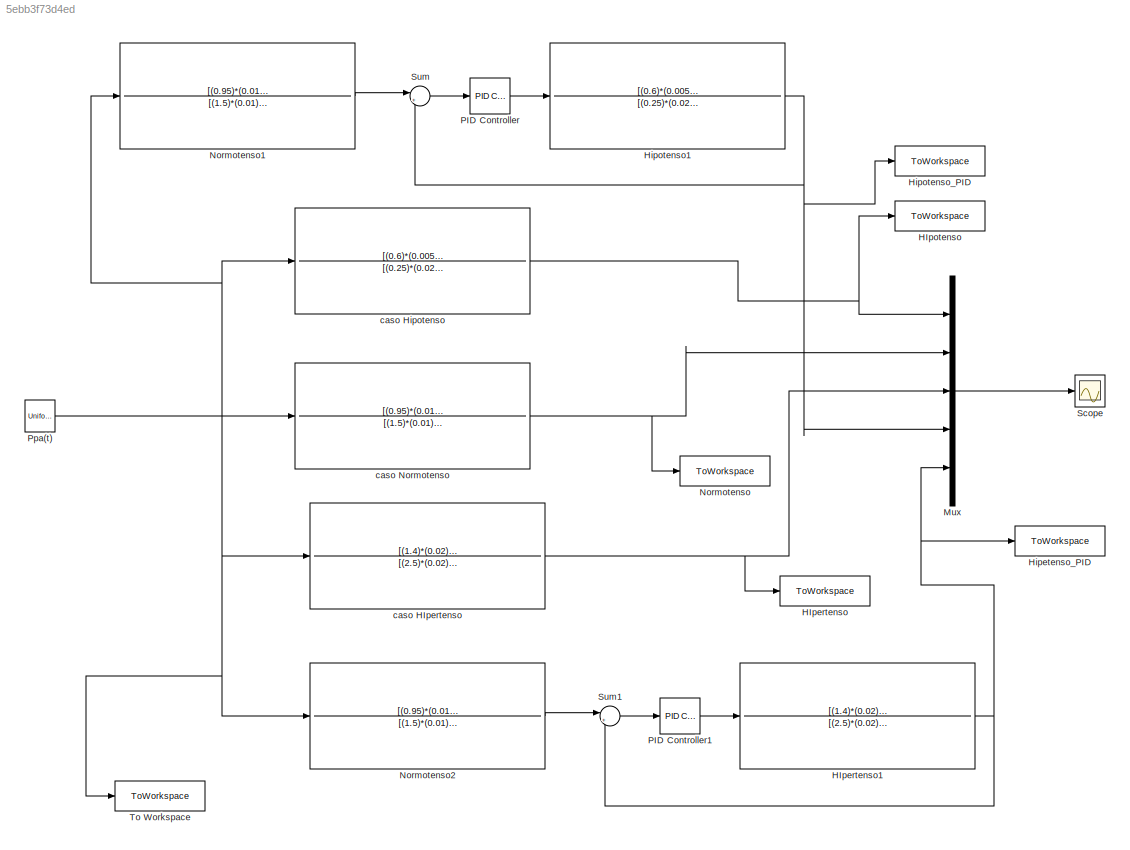
MODEL slx_5ebb3f73d4ed
KIND model
CONFIG AbsTol = auto
CONFIG EnableMultiTasking = off
CONFIG FixedStep = auto
CONFIG MaxStep = 1e-3
CONFIG MinStep = auto
CONFIG RelTol = 1e-3
CONFIG SampleTimeConstraint = Unconstrained
CONFIG SolverName = ode23t
CONFIG StartTime = 0.0
CONFIG StopTime = 10.0
BLOCK [ToWorkspace] HIpertenso
  FixptAsFi = on
  MaxDataPoints = inf
  SampleTime = -1
  VariableName = Pp2
BLOCK [TransferFcn] HIpertenso1
  Denominator = [(2.5)*(0.02)*(1.4)*(0.05),((0.02)*(0.05)+(1.4)*(0.02)),(1.4)*(0.05)]
  Numerator = [(1.4)*(0.02),(1.4)*(0.05)]
BLOCK [ToWorkspace] HIpotenso
  FixptAsFi = on
  MaxDataPoints = inf
  SampleTime = -1
  VariableName = Pp1
BLOCK [ToWorkspace] Hipetenso_PID
  FixptAsFi = on
  MaxDataPoints = inf
  SampleTime = -1
  VariableName = Pp4
BLOCK [TransferFcn] Hipotenso1
  Denominator = [(0.25)*(0.02)*(0.6)*(0.005),((0.005)*(0.02)+(0.6)*(0.005)),(0.6)*(0.02)]
  Numerator = [(0.6)*(0.005),(0.6)*(0.02)]
BLOCK [ToWorkspace] Hipotenso_PID
  FixptAsFi = on
  MaxDataPoints = inf
  SampleTime = -1
  VariableName = Pp3
BLOCK [Mux] Mux
  DisplayOption = bar
  Inputs = 5
BLOCK [ToWorkspace] Normotenso
  FixptAsFi = on
  MaxDataPoints = inf
  SampleTime = -1
  VariableName = Pp0
BLOCK [TransferFcn] Normotenso1
  Denominator = [(1.5)*(0.01)*(0.95)*(0.033),((0.01)*(0.033)+(0.95)*(0.01)),(0.95)*(0.033)]
  Numerator = [(0.95)*(0.01),(0.95)*(0.033)]
BLOCK [TransferFcn] Normotenso2
  Denominator = [(1.5)*(0.01)*(0.95)*(0.033),((0.01)*(0.033)+(0.95)*(0.01)),(0.95)*(0.033)]
  Numerator = [(0.95)*(0.01),(0.95)*(0.033)]
BLOCK [Reference] PID Controller  REF=slpidlib/PID Controller
  LibrarySourceBlock = simulink/Continuous/PID Controller
  SourceBlock = slpidlib/PID Controller
  SourceType = PID 1dof
BLOCK [Reference] PID Controller1  REF=slpidlib/PID Controller
  LibrarySourceBlock = simulink/Continuous/PID Controller
  SourceBlock = slpidlib/PID Controller
  SourceType = PID 1dof
BLOCK [UniformRandomNumber] Ppa(t)
  Minimum = -0.2
  SampleTime = 0.5
  Seed = 106
BLOCK [Scope] Scope
  ActiveDisplayYMaximum = 1.3241777304666695
  ActiveDisplayYMinimum = -0.85739249599732059
  ContainerLayout = {"WindowBounds":[1,1578,1278,551]}
  Floating = off
  GraphicalSettings = {"Style":{"BackgroundColor":[1,1,1],"AxesColor":[1,1,1],"LabelsColor":[0,0,0],"PreserveColors":false,"Visible":[true,true,true,true,true],"LineStyle":["-","-","-","-","-"],"LineWidth":[1.5,1.5,1.5,1.5,1.5],"BarWidth":[0.9,0.9,0.9,0.9,0.9],"LineColor":[[0.9294117647058824,0.6941176470588235,0.12549019607843137],[0.06666666666666667,0.44313725490196076,0.7450980392156863],[0.8666666666666667,0.32941...<+2447ch>
  MultipleDisplayCache = [{"MaxYLimMag":1.125,"MaxYLimReal":1.3241777304666695,"MinYLimMag":0,"MinYLimReal":-0.85739249599732059,"PlotAsMagnitudePhase":false,"ShowGrid":true,"ShowLegend":true,"Title":"%<SignalLabel>","YLabel":""}]
  NumInputPorts = 1
  ShowLegend = on
  Visible = on
  WasSavedAsWebScope = on
  WindowPosition = [920.000000,10.000000,342.000000,683.000000,]
BLOCK [Sum] Sum
  Inputs = |+-
BLOCK [Sum] Sum1
  Inputs = |+-
BLOCK [ToWorkspace] To Workspace
  FixptAsFi = on
  MaxDataPoints = inf
  SampleTime = -1
  VariableName = Ppa
BLOCK [TransferFcn] caso HIpertenso
  Denominator = [(2.5)*(0.02)*(1.4)*(0.05),((0.02)*(0.05)+(1.4)*(0.02)),(1.4)*(0.05)]
  Numerator = [(1.4)*(0.02),(1.4)*(0.05)]
BLOCK [TransferFcn] caso Hipotenso
  Denominator = [(0.25)*(0.02)*(0.6)*(0.005),((0.005)*(0.02)+(0.6)*(0.005)),(0.6)*(0.02)]
  Numerator = [(0.6)*(0.005),(0.6)*(0.02)]
BLOCK [TransferFcn] caso Normotenso
  Denominator = [(1.5)*(0.01)*(0.95)*(0.033),((0.01)*(0.033)+(0.95)*(0.01)),(0.95)*(0.033)]
  Numerator = [(0.95)*(0.01),(0.95)*(0.033)]
NET HIpertenso1:1 -> Hipetenso_PID:1, Mux:5, Sum1:2
NET Hipotenso1:1 -> Hipotenso_PID:1, Mux:4, Sum:2
LINE Mux:1 -> Scope:1
LINE Normotenso1:1 -> Sum:1
LINE Normotenso2:1 -> Sum1:1
LINE PID Controller1:1 -> HIpertenso1:1
LINE PID Controller:1 -> Hipotenso1:1
NET Ppa(t):1 -> Normotenso1:1, Normotenso2:1, To Workspace:1, caso HIpertenso:1, caso Hipotenso:1, caso Normotenso:1
LINE Sum1:1 -> PID Controller1:1
LINE Sum:1 -> PID Controller:1
NET caso HIpertenso:1 -> HIpertenso:1, Mux:3
NET caso Hipotenso:1 -> HIpotenso:1, Mux:1
NET caso Normotenso:1 -> Mux:2, Normotenso:1
note: NET lines group one-source signal fan-out (src -> all destinations, sorted); 1:1 wires keep LINE
